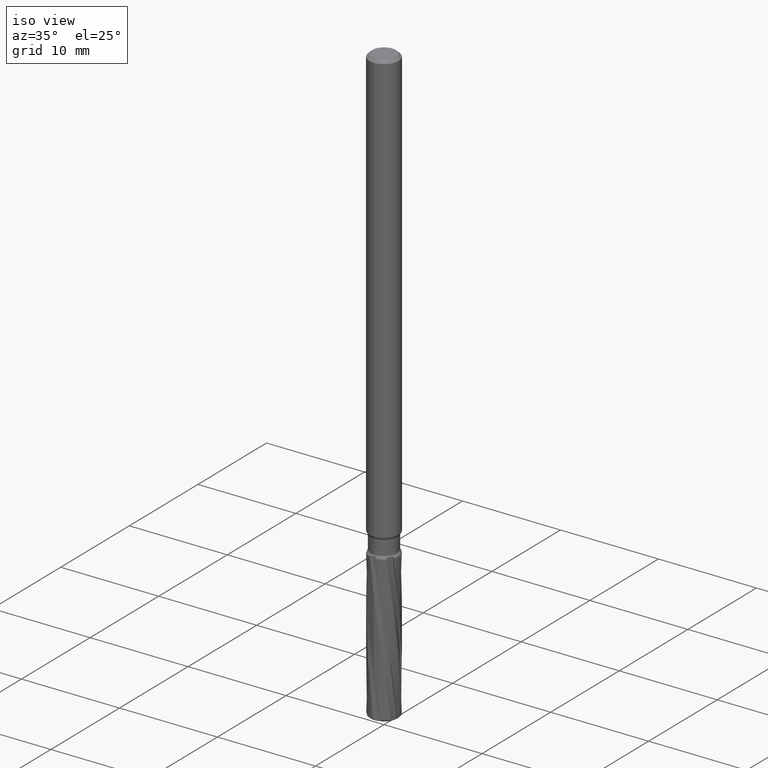
[diagram: clean part render]
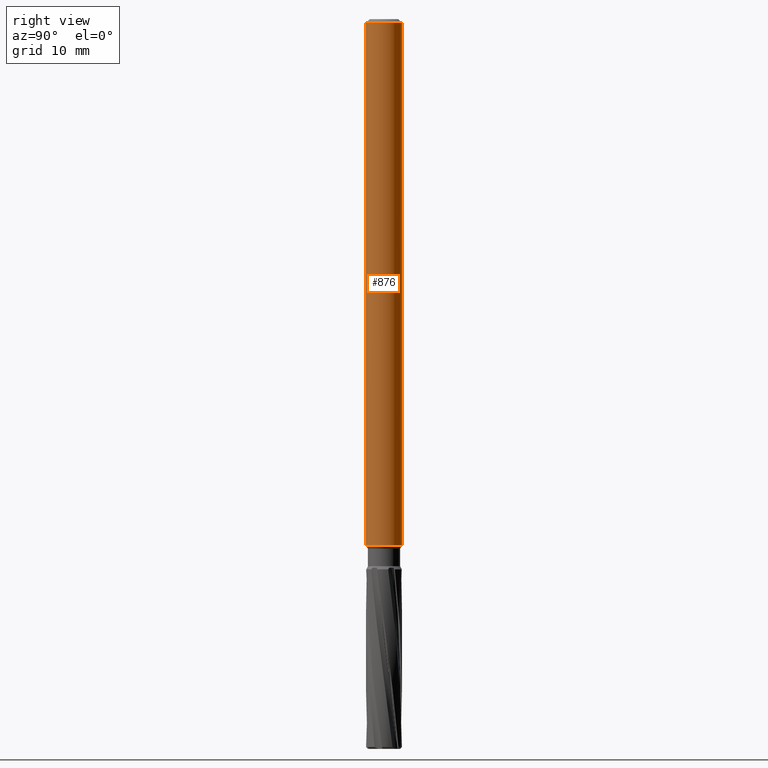
[diagram: tour spotlight — one face highlighted and labeled with its STEP entity id]
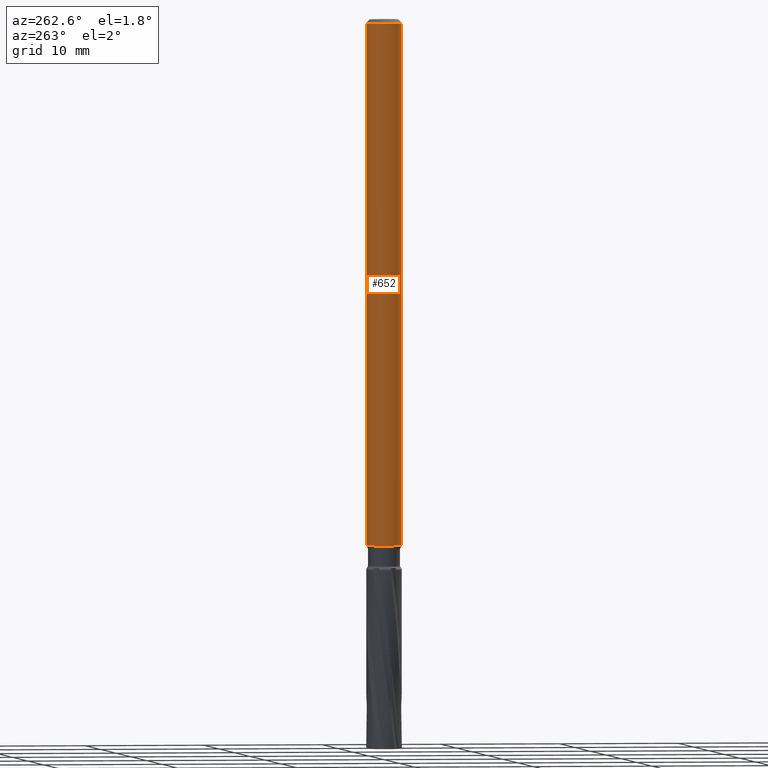
[diagram: tour spotlight — one face highlighted and labeled with its STEP entity id]
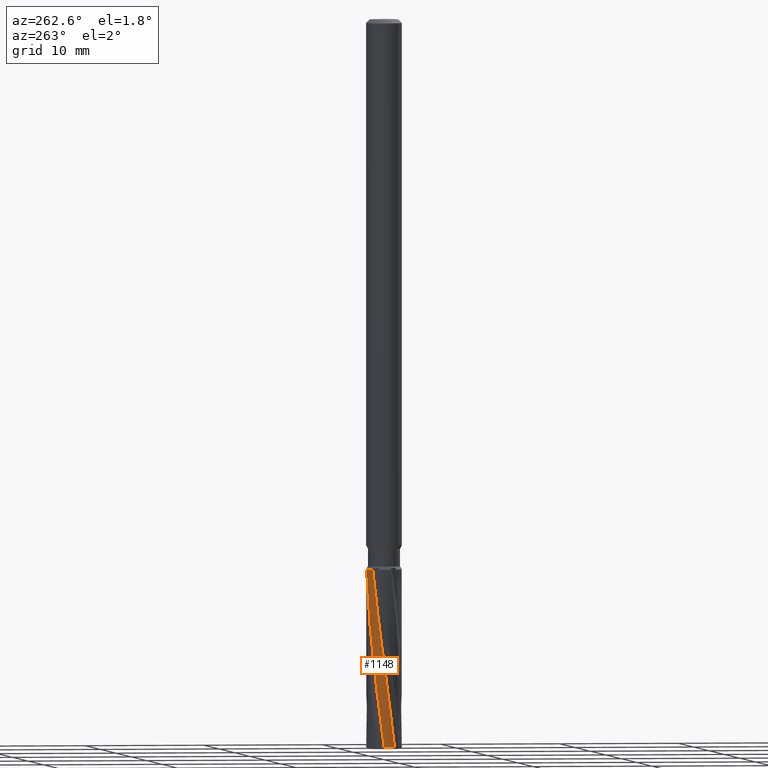
[diagram: tour spotlight — one face highlighted and labeled with its STEP entity id]
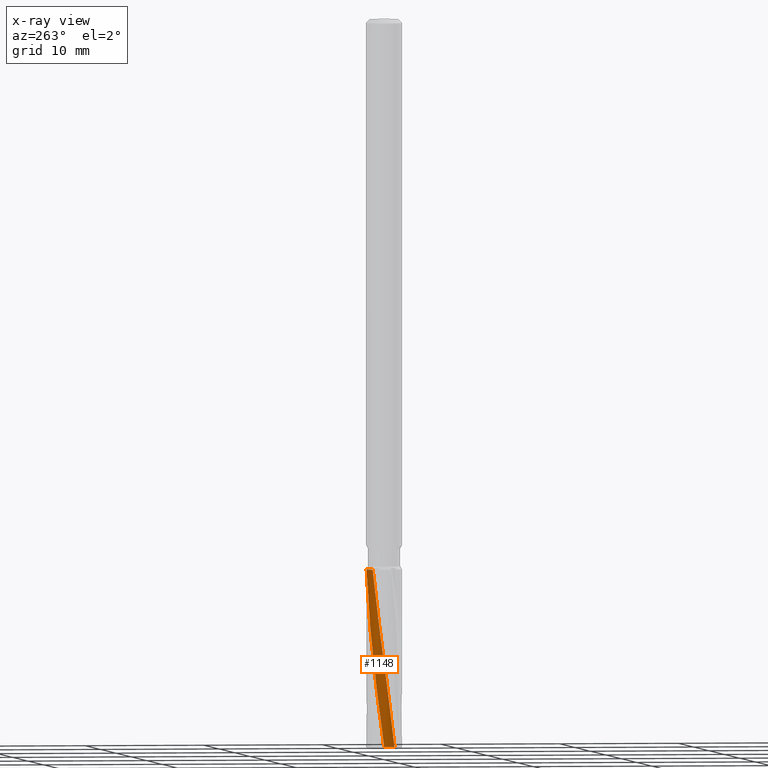
[diagram: x-ray of the same camera — body ghosted, this tour face saturated]
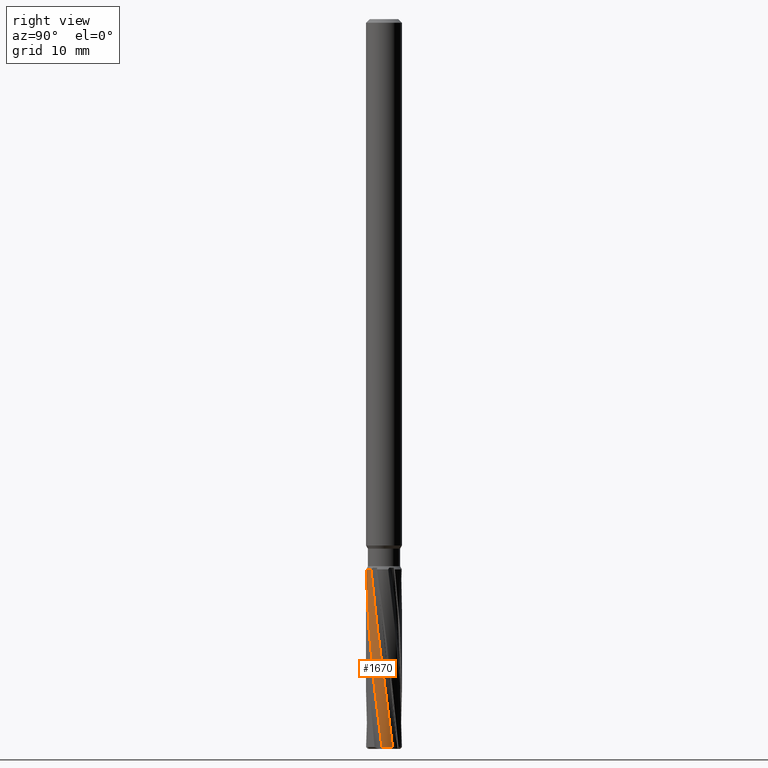
[diagram: tour spotlight — one face highlighted and labeled with its STEP entity id]
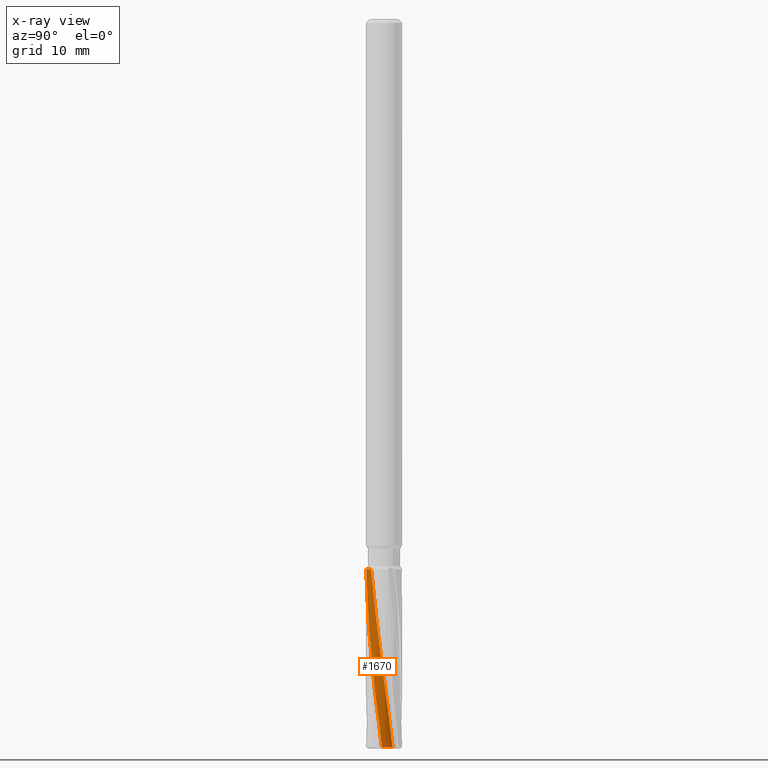
[diagram: x-ray of the same camera — body ghosted, this tour face saturated]
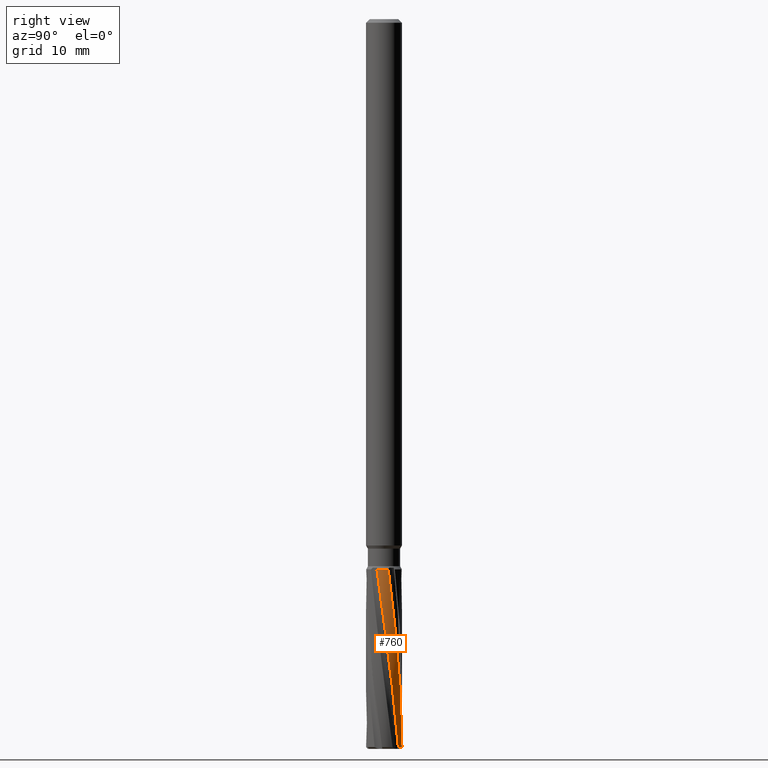
[diagram: tour spotlight — one face highlighted and labeled with its STEP entity id]
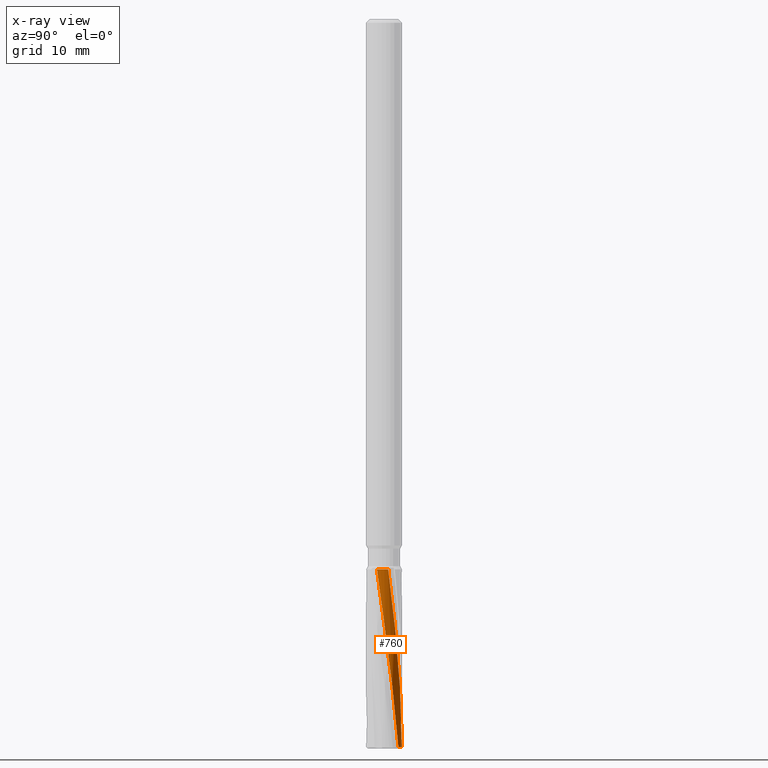
[diagram: x-ray of the same camera — body ghosted, this tour face saturated]
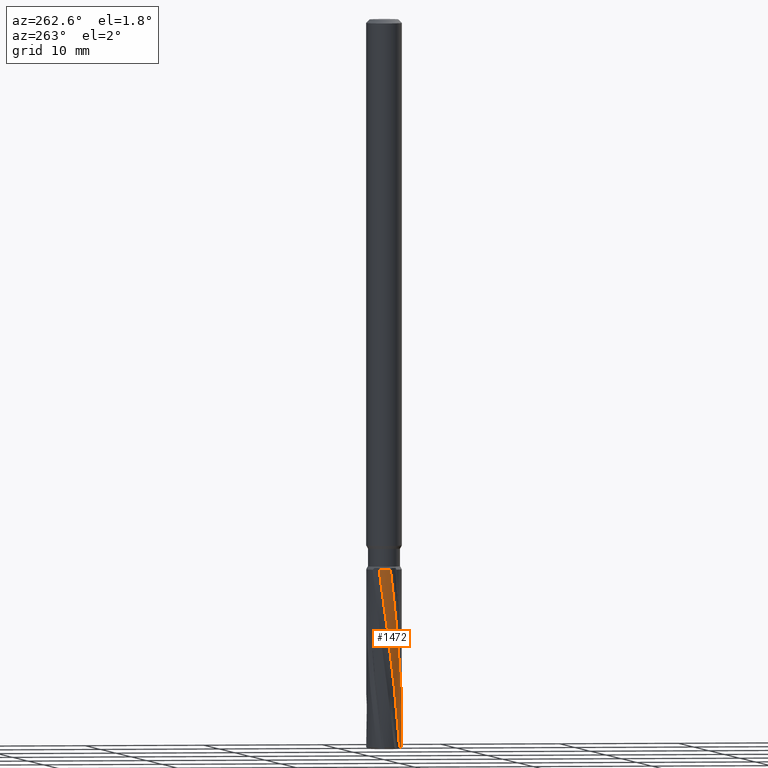
[diagram: tour spotlight — one face highlighted and labeled with its STEP entity id]
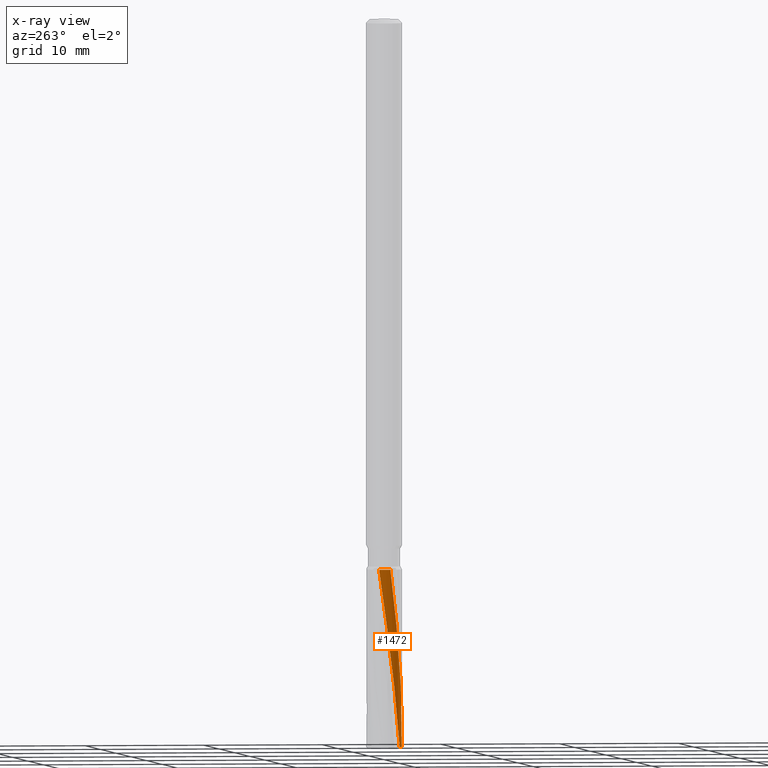
[diagram: x-ray of the same camera — body ghosted, this tour face saturated]
A machine part: a face-by-face anatomy tour. The part has 108 B-rep faces; the first image is the clean iso view, then the 6 largest visible faces are spotlighted one at a time (largest first), each with its STEP entity span.

Face 1 — right view, entity #876. In plain terms, the highlighted cylindrical surface (edge-blend (fillet) strip) has radius 1.5 mm, axis along (-0, -0, 1).
Definition (entity closure, byte-faithful):
#876=ADVANCED_FACE('',(#2144),#2145,.T.);
#904=VERTEX_POINT('',#2175);
#1282=VERTEX_POINT('',#2582);
#1378=EDGE_CURVE('',#904,#1758,#2688,.T.);
#1650=EDGE_CURVE('',#1702,#1282,#2989,.T.);
#1702=VERTEX_POINT('',#3045);
#1758=VERTEX_POINT('',#3108);
#1778=EDGE_CURVE('',#904,#1702,#3130,.T.);
#1808=EDGE_CURVE('',#1282,#1758,#3161,.T.);
#2144=FACE_OUTER_BOUND('',#4503,.T.);
#2145=CYLINDRICAL_SURFACE('',#4504,1.5);
#2175=CARTESIAN_POINT('',(0.0,1.5,-0.299999999999997));
#2582=CARTESIAN_POINT('',(1.83690953073357E-016,-1.5,-44.0));
#2688=CIRCLE('',#7583,1.5);
#2989=CIRCLE('',#9975,1.5);
#3045=CARTESIAN_POINT('',(0.0,1.5,-44.0));
#3108=CARTESIAN_POINT('',(1.83690953073357E-016,-1.5,-0.299999999999997));
#3130=LINE('',#10887,#10888);
#3161=LINE('',#11009,#11010);
#4503=EDGE_LOOP('',(#12179,#12180,#12181,#12182));
#4504=AXIS2_PLACEMENT_3D('',#12183,#12184,#12185);
#7583=AXIS2_PLACEMENT_3D('',#12640,#12641,#12642);
#9975=AXIS2_PLACEMENT_3D('',#12954,#12955,#12956);
#10887=CARTESIAN_POINT('',(-1.83690953073357E-016,1.5,-22.15));
#10888=VECTOR('',#13096,1.0);
#11009=CARTESIAN_POINT('',(1.83690953073357E-016,-1.5,-22.15));
#11010=VECTOR('',#13116,1.0);
#12179=ORIENTED_EDGE('',*,*,#1778,.F.);
#12180=ORIENTED_EDGE('',*,*,#1378,.T.);
#12181=ORIENTED_EDGE('',*,*,#1808,.F.);
#12182=ORIENTED_EDGE('',*,*,#1650,.F.);
#12183=CARTESIAN_POINT('',(0.0,0.0,-22.15));
#12184=DIRECTION('',(-0.0,-0.0,1.0));
#12185=DIRECTION('',(0.0,1.0,0.0));
#12640=CARTESIAN_POINT('',(0.0,0.0,-0.299999999999997));
#12641=DIRECTION('',(0.0,0.0,-1.0));
#12642=DIRECTION('',(0.0,1.0,0.0));
#12954=CARTESIAN_POINT('',(0.0,0.0,-44.0));
#12955=DIRECTION('',(0.0,0.0,-1.0));
#12956=DIRECTION('',(0.0,1.0,0.0));
#13096=DIRECTION('',(0.0,0.0,-1.0));
#13116=DIRECTION('',(-0.0,-0.0,1.0));

Face 2 — auxiliary view, entity #652. In plain terms, the highlighted cylindrical surface (edge-blend (fillet) strip) has radius 1.5 mm, axis along (-0, -0, 1).
Definition (entity closure, byte-faithful):
#652=ADVANCED_FACE('',(#1901),#1902,.T.);
#796=EDGE_CURVE('',#1282,#1702,#2059,.T.);
#904=VERTEX_POINT('',#2175);
#1080=EDGE_CURVE('',#1758,#904,#2363,.T.);
#1282=VERTEX_POINT('',#2582);
#1702=VERTEX_POINT('',#3045);
#1758=VERTEX_POINT('',#3108);
#1778=EDGE_CURVE('',#904,#1702,#3130,.T.);
#1808=EDGE_CURVE('',#1282,#1758,#3161,.T.);
#1901=FACE_OUTER_BOUND('',#3254,.T.);
#1902=CYLINDRICAL_SURFACE('',#3255,1.5);
#2059=CIRCLE('',#4005,1.5);
#2175=CARTESIAN_POINT('',(0.0,1.5,-0.299999999999997));
#2363=CIRCLE('',#5806,1.5);
#2582=CARTESIAN_POINT('',(1.83690953073357E-016,-1.5,-44.0));
#3045=CARTESIAN_POINT('',(0.0,1.5,-44.0));
#3108=CARTESIAN_POINT('',(1.83690953073357E-016,-1.5,-0.299999999999997));
#3130=LINE('',#10887,#10888);
#3161=LINE('',#11009,#11010);
#3254=EDGE_LOOP('',(#11953,#11954,#11955,#11956));
#3255=AXIS2_PLACEMENT_3D('',#11957,#11958,#11959);
#4005=AXIS2_PLACEMENT_3D('',#12114,#12115,#12116);
#5806=AXIS2_PLACEMENT_3D('',#12340,#12341,#12342);
#10887=CARTESIAN_POINT('',(-1.83690953073357E-016,1.5,-22.15));
#10888=VECTOR('',#13096,1.0);
#11009=CARTESIAN_POINT('',(1.83690953073357E-016,-1.5,-22.15));
#11010=VECTOR('',#13116,1.0);
#11953=ORIENTED_EDGE('',*,*,#1778,.T.);
#11954=ORIENTED_EDGE('',*,*,#796,.F.);
#11955=ORIENTED_EDGE('',*,*,#1808,.T.);
#11956=ORIENTED_EDGE('',*,*,#1080,.T.);
#11957=CARTESIAN_POINT('',(0.0,0.0,-22.15));
#11958=DIRECTION('',(-0.0,-0.0,1.0));
#11959=DIRECTION('',(0.0,1.0,0.0));
#12114=CARTESIAN_POINT('',(0.0,0.0,-44.0));
#12115=DIRECTION('',(0.0,0.0,-1.0));
#12116=DIRECTION('',(0.0,1.0,0.0));
#12340=CARTESIAN_POINT('',(0.0,0.0,-0.299999999999997));
#12341=DIRECTION('',(0.0,0.0,-1.0));
#12342=DIRECTION('',(0.0,1.0,0.0));
#13096=DIRECTION('',(0.0,0.0,-1.0));
#13116=DIRECTION('',(-0.0,-0.0,1.0));

Face 3 — auxiliary view, entity #1148. An x-ray twin of the same camera follows (body ghosted, this face saturated) — the face is partly hidden behind the body. In plain terms, the highlighted cylindrical surface (edge-blend (fillet) strip) has radius 1.5 mm, axis along (-0, -0, 1).
Definition (entity closure, byte-faithful):
#734=EDGE_CURVE('',#1088,#844,#1991,.T.);
#746=EDGE_CURVE('',#1084,#782,#2004,.T.);
#782=VERTEX_POINT('',#2044);
#844=VERTEX_POINT('',#2110);
#914=EDGE_CURVE('',#1084,#1088,#2186,.T.);
#1084=VERTEX_POINT('',#2367);
#1088=VERTEX_POINT('',#2371);
#1148=ADVANCED_FACE('',(#2437),#2438,.T.);
#1822=EDGE_CURVE('',#844,#782,#3176,.T.);
#1991=CIRCLE('',#3744,1.5);
#2004=CIRCLE('',#3806,1.5);
#2044=CARTESIAN_POINT('',(-1.48943472253416,0.177719462382665,-60.85));
#2110=CARTESIAN_POINT('',(-0.177745614277778,1.48943160185522,-46.0));
#2186=B_SPLINE_CURVE_WITH_KNOTS('',3,(#4760,#4761,#4762,#4763,#4764,#4765,#4766,#4767,#4768,#4769,#4770,#4771,#4772,#4773,#4774,#4775,#4776,#4777),.UNSPECIFIED.,.F.,.F.,(4,2,2,2,2,2,2,2,4),(0.0,1.67488416491363,4.03778229929834,6.00061003544883,8.1432726502589,9.86178422949192,12.4062010656694,14.3926949218989,15.2922815553905),.UNSPECIFIED.);
#2367=CARTESIAN_POINT('',(-1.31956415242222,-0.713267444681332,-60.85));
#2371=CARTESIAN_POINT('',(-1.03187320200903,1.08868622429772,-46.0));
#2437=FACE_OUTER_BOUND('',#6029,.T.);
#2438=CYLINDRICAL_SURFACE('',#6030,1.5);
#3176=B_SPLINE_CURVE_WITH_KNOTS('',3,(#11262,#11263,#11264,#11265,#11266,#11267,#11268,#11269,#11270,#11271,#11272,#11273,#11274,#11275,#11276,#11277,#11278,#11279,#11280,#11281,#11282,#11283),.UNSPECIFIED.,.F.,.F.,(4,2,2,2,2,2,2,2,2,2,4),(0.0,1.30604339807018,2.50326410544871,3.85034488139974,6.07481636004302,6.55721403285513,7.45850570428287,9.03303237025083,11.403353162563,11.9909677657364,13.7549169630714),.UNSPECIFIED.);
#3744=AXIS2_PLACEMENT_3D('',#12046,#12047,#12048);
#3806=AXIS2_PLACEMENT_3D('',#12063,#12064,#12065);
#4760=CARTESIAN_POINT('',(-1.31956415242222,-0.713267444681333,-60.85));
#4761=CARTESIAN_POINT('',(-1.35441898157641,-0.648785063726426,-60.2965380233117));
#4762=CARTESIAN_POINT('',(-1.38449807681961,-0.581840168841955,-59.742571754128));
#4763=CARTESIAN_POINT('',(-1.44492833535803,-0.4157834158828,-58.4085767736281));
#4764=CARTESIAN_POINT('',(-1.47017404106301,-0.315175505857747,-57.6352534763637));
#4765=CARTESIAN_POINT('',(-1.49706699754967,-0.127304677136784,-56.2071107446127));
#4766=CARTESIAN_POINT('',(-1.50189902497404,-0.0412080831964077,-55.5592822952937));
#4767=CARTESIAN_POINT('',(-1.49652923850484,0.138625003018483,-54.2040266431519));
#4768=CARTESIAN_POINT('',(-1.48492110362975,0.23204618488848,-53.5000413170261));
#4769=CARTESIAN_POINT('',(-1.44835132900388,0.397444950886579,-52.2256773120986));
#4770=CARTESIAN_POINT('',(-1.42659939964841,0.469519815488407,-51.661665488735));
#4771=CARTESIAN_POINT('',(-1.3596202430554,0.643261182788864,-50.2536000683196));
#4772=CARTESIAN_POINT('',(-1.30796216471549,0.743311540645941,-49.385737037939));
#4773=CARTESIAN_POINT('',(-1.19321706343319,0.91341439966322,-47.8982925524993));
#4774=CARTESIAN_POINT('',(-1.14625335430767,0.970341881377115,-47.4155061501288));
#4775=CARTESIAN_POINT('',(-1.07294258885753,1.04876781599542,-46.5431067887712));
#4776=CARTESIAN_POINT('',(-1.05130586147785,1.07026765694369,-46.2722702305774));
#4777=CARTESIAN_POINT('',(-1.03187320200904,1.08868622429772,-46.0));
#6029=EDGE_LOOP('',(#12430,#12431,#12432,#12433));
#6030=AXIS2_PLACEMENT_3D('',#12434,#12435,#12436);
#11262=CARTESIAN_POINT('',(-0.177745614277784,1.48943160185522,-46.0));
#11263=CARTESIAN_POINT('',(-0.255886792684306,1.48010639904701,-46.4281760189859));
#11264=CARTESIAN_POINT('',(-0.325295369909301,1.46558511600695,-46.8584321338596));
#11265=CARTESIAN_POINT('',(-0.438847976562361,1.43546831820715,-47.6913696306592));
#11266=CARTESIAN_POINT('',(-0.469033955680904,1.42561683939228,-47.9795152186357));
#11267=CARTESIAN_POINT('',(-0.566336184391042,1.39006174748068,-48.8258113851644));
#11268=CARTESIAN_POINT('',(-0.618645420185339,1.36777321238852,-49.2684486248092));
#11269=CARTESIAN_POINT('',(-0.759406847228604,1.29727231322428,-50.4523167708855));
#11270=CARTESIAN_POINT('',(-0.848388278465,1.24205996647412,-51.2164371080037));
#11271=CARTESIAN_POINT('',(-0.954619220571428,1.15727647863332,-52.2399794336839));
#11272=CARTESIAN_POINT('',(-0.973260503554684,1.14164811245269,-52.4231792941386));
#11273=CARTESIAN_POINT('',(-1.02582172202605,1.09534093174691,-52.9506869916033));
#11274=CARTESIAN_POINT('',(-1.05863784471017,1.06365479212349,-53.2938446897606));
#11275=CARTESIAN_POINT('',(-1.14461907129634,0.972718715964287,-54.2377429408532));
#11276=CARTESIAN_POINT('',(-1.19475397398847,0.910470786890731,-54.8397212002244));
#11277=CARTESIAN_POINT('',(-1.30753009591084,0.744886513700024,-56.3451970277545));
#11278=CARTESIAN_POINT('',(-1.36278653496719,0.638025825096449,-57.2402642015759));
#11279=CARTESIAN_POINT('',(-1.41506815582798,0.498456359007737,-58.369733560542));
#11280=CARTESIAN_POINT('',(-1.42468875914056,0.470270091881487,-58.5958112059949));
#11281=CARTESIAN_POINT('',(-1.4598865082868,0.356047232596707,-59.4990999819927));
#11282=CARTESIAN_POINT('',(-1.47869551278455,0.267722840061162,-60.1727727506788));
#11283=CARTESIAN_POINT('',(-1.48943472253416,0.177719462382661,-60.85));
#12046=CARTESIAN_POINT('',(0.0,0.0,-46.0));
#12047=DIRECTION('',(0.0,0.0,-1.0));
#12048=DIRECTION('',(0.0,1.0,0.0));
#12063=CARTESIAN_POINT('',(0.0,0.0,-60.85));
#12064=DIRECTION('',(0.0,0.0,-1.0));
#12065=DIRECTION('',(0.0,1.0,0.0));
#12430=ORIENTED_EDGE('',*,*,#914,.T.);
#12431=ORIENTED_EDGE('',*,*,#734,.T.);
#12432=ORIENTED_EDGE('',*,*,#1822,.T.);
#12433=ORIENTED_EDGE('',*,*,#746,.F.);
#12434=CARTESIAN_POINT('',(0.0,0.0,-53.425));
#12435=DIRECTION('',(-0.0,-0.0,1.0));
#12436=DIRECTION('',(0.0,1.0,0.0));

Face 4 — right view, entity #1670. An x-ray twin of the same camera follows (body ghosted, this face saturated) — the face is partly hidden behind the body. In plain terms, the highlighted cylindrical surface (edge-blend (fillet) strip) has radius 1.5 mm, axis along (-0, -0, 1).
Definition (entity closure, byte-faithful):
#784=EDGE_CURVE('',#1700,#1098,#2046,.T.);
#1098=VERTEX_POINT('',#2382);
#1210=EDGE_CURVE('',#1756,#1250,#2502,.T.);
#1250=VERTEX_POINT('',#2546);
#1414=EDGE_CURVE('',#1098,#1250,#2725,.T.);
#1424=EDGE_CURVE('',#1756,#1700,#2736,.T.);
#1670=ADVANCED_FACE('',(#3012),#3013,.T.);
#1700=VERTEX_POINT('',#3043);
#1756=VERTEX_POINT('',#3106);
#2046=CIRCLE('',#3975,1.5);
#2382=CARTESIAN_POINT('',(0.177745614277781,-1.48943160185522,-46.0));
#2502=CIRCLE('',#6297,1.5);
#2546=CARTESIAN_POINT('',(1.48943472253416,-0.177719462382663,-60.85));
#2725=B_SPLINE_CURVE_WITH_KNOTS('',3,(#7842,#7843,#7844,#7845,#7846,#7847,#7848,#7849,#7850,#7851,#7852,#7853,#7854,#7855,#7856,#7857,#7858,#7859,#7860,#7861,#7862,#7863),.UNSPECIFIED.,.F.,.F.,(4,2,2,2,2,2,2,2,2,2,4),(0.0,1.30604339834715,2.50326410783607,3.85034494331315,6.07481644011164,6.55721410867814,7.45850577020245,9.03303241897909,11.4033531852368,11.9909677816807,13.7549169580794),.UNSPECIFIED.);
#2736=B_SPLINE_CURVE_WITH_KNOTS('',3,(#7894,#7895,#7896,#7897,#7898,#7899,#7900,#7901,#7902,#7903,#7904,#7905,#7906,#7907,#7908,#7909,#7910,#7911),.UNSPECIFIED.,.F.,.F.,(4,2,2,2,2,2,2,2,4),(0.0,1.67488416497494,4.03778229942081,6.00061003563149,8.14327265055296,9.86178423007808,12.4062010692113,14.392694928947,15.2922815648404),.UNSPECIFIED.);
#3012=FACE_OUTER_BOUND('',#10015,.T.);
#3013=CYLINDRICAL_SURFACE('',#10016,1.5);
#3043=CARTESIAN_POINT('',(1.03187320200903,-1.08868622429772,-46.0));
#3106=CARTESIAN_POINT('',(1.31956415242222,0.713267444681332,-60.85));
#3975=AXIS2_PLACEMENT_3D('',#12100,#12101,#12102);
#6297=AXIS2_PLACEMENT_3D('',#12466,#12467,#12468);
#7842=CARTESIAN_POINT('',(0.177745614277779,-1.48943160185522,-46.0));
#7843=CARTESIAN_POINT('',(0.255886792700874,-1.48010639904504,-46.4281760190767));
#7844=CARTESIAN_POINT('',(0.325295369735146,-1.46558511603694,-46.8584321329075));
#7845=CARTESIAN_POINT('',(0.438847976095951,-1.43546831834571,-47.6913696269396));
#7846=CARTESIAN_POINT('',(0.469033955353359,-1.42561683948305,-47.9795152156786));
#7847=CARTESIAN_POINT('',(0.566336185277145,-1.39006174718942,-48.8258113929931));
#7848=CARTESIAN_POINT('',(0.618645423190539,-1.36777321113945,-49.2684486502388));
#7849=CARTESIAN_POINT('',(0.759406852820723,-1.29727231000053,-50.4523168176626));
#7850=CARTESIAN_POINT('',(0.848388284558474,-1.24205996239023,-51.2164371625335));
#7851=CARTESIAN_POINT('',(0.954619226709005,-1.15727647356588,-52.2399794937266));
#7852=CARTESIAN_POINT('',(0.973260509480799,-1.14164810739811,-52.4231793527852));
#7853=CARTESIAN_POINT('',(1.02582172738464,-1.09534092671501,-52.9506870469299));
#7854=CARTESIAN_POINT('',(1.05863784967886,-1.06365478716466,-53.2938447426309));
#7855=CARTESIAN_POINT('',(1.14461907526444,-0.972718711250085,-54.2377429873423));
#7856=CARTESIAN_POINT('',(1.19475397735967,-0.910470782418585,-54.8397212423099));
#7857=CARTESIAN_POINT('',(1.30753009794425,-0.744886509995402,-56.3451970592911));
#7858=CARTESIAN_POINT('',(1.36278653633668,-0.638025822008112,-57.2402642269967));
#7859=CARTESIAN_POINT('',(1.41506815657837,-0.498456356863806,-58.3697335777856));
#7860=CARTESIAN_POINT('',(1.42468875978975,-0.470270089901891,-58.5958112217643));
#7861=CARTESIAN_POINT('',(1.45988650854326,-0.356047231382764,-59.499099991249));
#7862=CARTESIAN_POINT('',(1.47869551285942,-0.267722839433675,-60.1727727554003));
#7863=CARTESIAN_POINT('',(1.48943472253416,-0.177719462382661,-60.85));
#7894=CARTESIAN_POINT('',(1.31956415242222,0.713267444681331,-60.85));
#7895=CARTESIAN_POINT('',(1.35441898157769,0.648785063724063,-60.2965380232914));
#7896=CARTESIAN_POINT('',(1.38449807682011,0.581840168840894,-59.7425717541191));
#7897=CARTESIAN_POINT('',(1.44492833535863,0.415783415880723,-58.4085767736119));
#7898=CARTESIAN_POINT('',(1.47017404106332,0.315175505856189,-57.6352534763518));
#7899=CARTESIAN_POINT('',(1.49706699754979,0.127304677135461,-56.2071107446027));
#7900=CARTESIAN_POINT('',(1.50189902497409,0.0412080831952561,-55.5592822952851));
#7901=CARTESIAN_POINT('',(1.49652923850465,-0.138625003022163,-54.2040266431242));
#7902=CARTESIAN_POINT('',(1.48492110362905,-0.232046184891887,-53.5000413169999));
#7903=CARTESIAN_POINT('',(1.44835132900216,-0.397444950894132,-52.2256773120404));
#7904=CARTESIAN_POINT('',(1.42659939963837,-0.469519815514139,-51.6616654885261));
#7905=CARTESIAN_POINT('',(1.35962024303265,-0.643261182848347,-50.2536000678381));
#7906=CARTESIAN_POINT('',(1.30796216470932,-0.743311540645689,-49.3857370379378));
#7907=CARTESIAN_POINT('',(1.19321706347572,-0.913414399607487,-47.8982925529891));
#7908=CARTESIAN_POINT('',(1.14625335436513,-0.970341881314838,-47.415506150806));
#7909=CARTESIAN_POINT('',(1.07294258882195,-1.04876781603385,-46.5431067883508));
#7910=CARTESIAN_POINT('',(1.05130586146142,-1.07026765695925,-46.2722702303472));
#7911=CARTESIAN_POINT('',(1.03187320200903,-1.08868622429772,-46.0));
#10015=EDGE_LOOP('',(#12986,#12987,#12988,#12989));
#10016=AXIS2_PLACEMENT_3D('',#12990,#12991,#12992);
#12100=CARTESIAN_POINT('',(0.0,0.0,-46.0));
#12101=DIRECTION('',(0.0,0.0,-1.0));
#12102=DIRECTION('',(0.0,1.0,0.0));
#12466=CARTESIAN_POINT('',(0.0,0.0,-60.85));
#12467=DIRECTION('',(0.0,0.0,-1.0));
#12468=DIRECTION('',(0.0,1.0,0.0));
#12986=ORIENTED_EDGE('',*,*,#1414,.T.);
#12987=ORIENTED_EDGE('',*,*,#1210,.F.);
#12988=ORIENTED_EDGE('',*,*,#1424,.T.);
#12989=ORIENTED_EDGE('',*,*,#784,.T.);
#12990=CARTESIAN_POINT('',(0.0,0.0,-53.425));
#12991=DIRECTION('',(-0.0,-0.0,1.0));
#12992=DIRECTION('',(0.0,1.0,0.0));

Face 5 — right view, entity #760. An x-ray twin of the same camera follows (body ghosted, this face saturated) — the face is partly hidden behind the body. In plain terms, the highlighted cylindrical surface (edge-blend (fillet) strip) has radius 1.5 mm, axis along (-0, -0, 1).
Definition (entity closure, byte-faithful):
#760=ADVANCED_FACE('',(#2020),#2021,.T.);
#886=VERTEX_POINT('',#2155);
#932=VERTEX_POINT('',#2205);
#940=EDGE_CURVE('',#932,#1052,#2214,.T.);
#1052=VERTEX_POINT('',#2332);
#1238=EDGE_CURVE('',#1052,#886,#2533,.T.);
#1454=EDGE_CURVE('',#1580,#886,#2769,.T.);
#1578=EDGE_CURVE('',#1580,#932,#2907,.T.);
#1580=VERTEX_POINT('',#2909);
#2020=FACE_OUTER_BOUND('',#3888,.T.);
#2021=CYLINDRICAL_SURFACE('',#3889,1.5);
#2155=CARTESIAN_POINT('',(0.898626930437378,1.20102857580188,-60.85));
#2205=CARTESIAN_POINT('',(1.4587665279965,0.349285294275359,-46.0));
#2214=CIRCLE('',#4879,1.5);
#2332=CARTESIAN_POINT('',(1.37875841154486,-0.590783583551782,-46.0));
#2533=B_SPLINE_CURVE_WITH_KNOTS('',3,(#6519,#6520,#6521,#6522,#6523,#6524,#6525,#6526,#6527,#6528,#6529,#6530,#6531,#6532,#6533,#6534,#6535,#6536,#6537,#6538,#6539,#6540),.UNSPECIFIED.,.F.,.F.,(4,2,2,2,2,2,2,2,2,2,4),(0.0,1.30604339845994,2.50326410780427,3.85034493131066,6.07481642212485,6.55721409108788,7.45850575413113,9.03303240546787,11.403353175524,11.9909677729641,13.7549169524913),.UNSPECIFIED.);
#2769=CIRCLE('',#8084,1.5);
#2907=B_SPLINE_CURVE_WITH_KNOTS('',3,(#9018,#9019,#9020,#9021,#9022,#9023,#9024,#9025,#9026,#9027,#9028,#9029,#9030,#9031,#9032,#9033,#9034,#9035),.UNSPECIFIED.,.F.,.F.,(4,2,2,2,2,2,2,2,4),(0.0,1.87195271668825,3.51481235825181,6.38708840890249,10.7230650968878,11.2600117154039,12.1960790160297,14.6368156131778,15.4970612428336),.UNSPECIFIED.);
#2909=CARTESIAN_POINT('',(0.0420743494246605,1.49940980026159,-60.85));
#3888=EDGE_LOOP('',(#12085,#12086,#12087,#12088));
#3889=AXIS2_PLACEMENT_3D('',#12089,#12090,#12091);
#4879=AXIS2_PLACEMENT_3D('',#12240,#12241,#12242);
#6519=CARTESIAN_POINT('',(1.37875841154486,-0.590783583551784,-46.0));
#6520=CARTESIAN_POINT('',(1.40975313823002,-0.518448736544389,-46.4281760191136));
#6521=CARTESIAN_POINT('',(1.43188162677736,-0.451078504057512,-46.8584321331217));
#6522=CARTESIAN_POINT('',(1.46257601808866,-0.337680663368195,-47.6913696277715));
#6523=CARTESIAN_POINT('',(1.46913737675173,-0.30661309908824,-47.979515216389));
#6524=CARTESIAN_POINT('',(1.48699687849369,-0.204569350252548,-48.8258113913609));
#6525=CARTESIAN_POINT('',(1.493849058967,-0.148123953811633,-49.2684486450156));
#6526=CARTESIAN_POINT('',(1.50317420247823,0.00902946959650426,-50.4523168048662));
#6527=CARTESIAN_POINT('',(1.49984962287919,0.113695823481306,-51.21643714743));
#6528=CARTESIAN_POINT('',(1.47954043900514,0.248086262463701,-52.2399794782402));
#6529=CARTESIAN_POINT('',(1.47532651829426,0.272044270035963,-52.4231793376591));
#6530=CARTESIAN_POINT('',(1.46150393246658,0.340717210460088,-52.9506870326159));
#6531=CARTESIAN_POINT('',(1.45047099184848,0.384979875895122,-53.2938447289727));
#6532=CARTESIAN_POINT('',(1.41470865285698,0.504909839702097,-54.2377429752421));
#6533=CARTESIAN_POINT('',(1.38586781622514,0.579451903119845,-54.8397212313968));
#6534=CARTESIAN_POINT('',(1.29885569013228,0.759911025098402,-56.3451970511189));
#6535=CARTESIAN_POINT('',(1.23393983881078,0.861194848694736,-57.2402642204415));
#6536=CARTESIAN_POINT('',(1.13920994639569,0.976256792804326,-58.3697335733087));
#6537=CARTESIAN_POINT('',(1.11961022474988,0.998681613111133,-58.5958112176798));
#6538=CARTESIAN_POINT('',(1.03828920183655,1.08627518713315,-59.4990999888376));
#6539=CARTESIAN_POINT('',(0.971202536683882,1.14672645878324,-60.172772754175));
#6540=CARTESIAN_POINT('',(0.898626930437381,1.20102857580188,-60.85));
#8084=AXIS2_PLACEMENT_3D('',#12709,#12710,#12711);
#9018=CARTESIAN_POINT('',(0.04207434942466,1.49940980026159,-60.85));
#9019=CARTESIAN_POINT('',(0.123966259230878,1.49711186354833,-60.2314171316745));
#9020=CARTESIAN_POINT('',(0.205551088237647,1.48810930154927,-59.6120639121595));
#9021=CARTESIAN_POINT('',(0.356651898127836,1.45875826552316,-58.4509717114397));
#9022=CARTESIAN_POINT('',(0.426204489010925,1.43998247857602,-57.9120514655465));
#9023=CARTESIAN_POINT('',(0.613317298175668,1.37467672025384,-56.4219147665246));
#9024=CARTESIAN_POINT('',(0.726585533074418,1.31830321600457,-55.4747141494465));
#9025=CARTESIAN_POINT('',(0.989565819371271,1.14318831732865,-53.0967676979488));
#9026=CARTESIAN_POINT('',(1.12545351695094,1.00933036902798,-51.695402285647));
#9027=CARTESIAN_POINT('',(1.24592975590301,0.835584709676322,-50.0867771711385));
#9028=CARTESIAN_POINT('',(1.25874738301223,0.816154229852388,-49.9090034719332));
#9029=CARTESIAN_POINT('',(1.29298222393838,0.76149636207575,-49.4200148884661));
#9030=CARTESIAN_POINT('',(1.3136713592262,0.725298437779351,-49.1074367808405));
#9031=CARTESIAN_POINT('',(1.3836494851209,0.589648725862483,-47.9870372002704));
#9032=CARTESIAN_POINT('',(1.41261362429423,0.511807639175462,-47.4602156811456));
#9033=CARTESIAN_POINT('',(1.4459613256856,0.400147619226084,-46.5000581286917));
#9034=CARTESIAN_POINT('',(1.45302866722285,0.373249083693612,-46.250576507218));
#9035=CARTESIAN_POINT('',(1.4587665279965,0.349285294275359,-46.0));
#12085=ORIENTED_EDGE('',*,*,#1578,.T.);
#12086=ORIENTED_EDGE('',*,*,#940,.T.);
#12087=ORIENTED_EDGE('',*,*,#1238,.T.);
#12088=ORIENTED_EDGE('',*,*,#1454,.F.);
#12089=CARTESIAN_POINT('',(0.0,0.0,-53.425));
#12090=DIRECTION('',(-0.0,-0.0,1.0));
#12091=DIRECTION('',(0.0,1.0,0.0));
#12240=CARTESIAN_POINT('',(0.0,0.0,-46.0));
#12241=DIRECTION('',(0.0,0.0,-1.0));
#12242=DIRECTION('',(0.0,1.0,0.0));
#12709=CARTESIAN_POINT('',(0.0,0.0,-60.85));
#12710=DIRECTION('',(0.0,0.0,-1.0));
#12711=DIRECTION('',(0.0,1.0,0.0));

Face 6 — auxiliary view, entity #1472. An x-ray twin of the same camera follows (body ghosted, this face saturated) — the face is partly hidden behind the body. In plain terms, the highlighted cylindrical surface (edge-blend (fillet) strip) has radius 1.5 mm, axis along (-0, -0, 1).
Definition (entity closure, byte-faithful):
#882=VERTEX_POINT('',#2151);
#942=VERTEX_POINT('',#2216);
#1166=EDGE_CURVE('',#1574,#882,#2458,.T.);
#1420=EDGE_CURVE('',#1574,#1496,#2731,.T.);
#1472=ADVANCED_FACE('',(#2789),#2790,.T.);
#1476=EDGE_CURVE('',#882,#942,#2794,.T.);
#1496=VERTEX_POINT('',#2815);
#1574=VERTEX_POINT('',#2902);
#1624=EDGE_CURVE('',#942,#1496,#2961,.T.);
#2151=CARTESIAN_POINT('',(-1.4587665279965,-0.349285294275358,-46.0));
#2216=CARTESIAN_POINT('',(-1.37875841154486,0.590783583551779,-46.0));
#2458=B_SPLINE_CURVE_WITH_KNOTS('',3,(#6071,#6072,#6073,#6074,#6075,#6076,#6077,#6078,#6079,#6080,#6081,#6082,#6083,#6084,#6085,#6086,#6087,#6088),.UNSPECIFIED.,.F.,.F.,(4,2,2,2,2,2,2,2,4),(0.0,1.87195271657241,3.51481235805528,6.38708840855163,10.7230650961034,11.2600117144502,12.1960790150416,14.6368156125278,15.4970612428314),.UNSPECIFIED.);
#2731=CIRCLE('',#7888,1.5);
#2789=FACE_OUTER_BOUND('',#8330,.T.);
#2790=CYLINDRICAL_SURFACE('',#8331,1.5);
#2794=CIRCLE('',#8336,1.5);
#2815=CARTESIAN_POINT('',(-0.898626930437378,-1.20102857580188,-60.85));
#2902=CARTESIAN_POINT('',(-0.042074349424662,-1.49940980026159,-60.85));
#2961=B_SPLINE_CURVE_WITH_KNOTS('',3,(#9815,#9816,#9817,#9818,#9819,#9820,#9821,#9822,#9823,#9824,#9825,#9826,#9827,#9828,#9829,#9830,#9831,#9832,#9833,#9834,#9835,#9836),.UNSPECIFIED.,.F.,.F.,(4,2,2,2,2,2,2,2,2,2,4),(0.0,1.30604339504434,2.50326411269919,3.85034490349333,6.07481639952728,6.55721407699731,7.45850575739148,9.03303243896432,11.4033532546563,11.990967863593,13.7549170779087),.UNSPECIFIED.);
#6071=CARTESIAN_POINT('',(-0.0420743494246629,-1.49940980026159,-60.85));
#6072=CARTESIAN_POINT('',(-0.123966259225813,-1.49711186354847,-60.2314171317127));
#6073=CARTESIAN_POINT('',(-0.205551088233923,-1.48810930154981,-59.6120639121879));
#6074=CARTESIAN_POINT('',(-0.356651898125698,-1.45875826552374,-58.4509717114563));
#6075=CARTESIAN_POINT('',(-0.426204489009143,-1.43998247857658,-57.9120514655606));
#6076=CARTESIAN_POINT('',(-0.613317298174936,-1.37467672025421,-56.4219147665308));
#6077=CARTESIAN_POINT('',(-0.726585533073136,-1.3183032160055,-55.4747141494584));
#6078=CARTESIAN_POINT('',(-0.98956581936752,-1.14318831733103,-53.0967676979822));
#6079=CARTESIAN_POINT('',(-1.12545351693158,-1.00933036905673,-51.695402285911));
#6080=CARTESIAN_POINT('',(-1.24592975590497,-0.835584709673384,-50.0867771711115));
#6081=CARTESIAN_POINT('',(-1.25874738301407,-0.816154229849584,-49.9090034719076));
#6082=CARTESIAN_POINT('',(-1.29298222394761,-0.761496362060788,-49.420014888333));
#6083=CARTESIAN_POINT('',(-1.31367135923278,-0.725298437766793,-49.1074367807361));
#6084=CARTESIAN_POINT('',(-1.38364948511801,-0.589648725867563,-47.9870372003142));
#6085=CARTESIAN_POINT('',(-1.41261362429795,-0.511807639157717,-47.4602156809631));
#6086=CARTESIAN_POINT('',(-1.4459613256794,-0.400147619248752,-46.5000581288972));
#6087=CARTESIAN_POINT('',(-1.45302866722282,-0.373249083693737,-46.2505765072194));
#6088=CARTESIAN_POINT('',(-1.45876652799651,-0.349285294275357,-46.0));
#7888=AXIS2_PLACEMENT_3D('',#12668,#12669,#12670);
#8330=EDGE_LOOP('',(#12732,#12733,#12734,#12735));
#8331=AXIS2_PLACEMENT_3D('',#12736,#12737,#12738);
#8336=AXIS2_PLACEMENT_3D('',#12739,#12740,#12741);
#9815=CARTESIAN_POINT('',(-1.37875841154486,0.590783583551784,-46.0));
#9816=CARTESIAN_POINT('',(-1.40975313814896,0.518448736733561,-46.4281760179938));
#9817=CARTESIAN_POINT('',(-1.43188162663895,0.451078504483632,-46.8584321303698));
#9818=CARTESIAN_POINT('',(-1.46257601808286,0.337680663467746,-47.6913696266937));
#9819=CARTESIAN_POINT('',(-1.46913737676999,0.306613099053131,-47.9795152167804));
#9820=CARTESIAN_POINT('',(-1.48699687831247,0.20456935121002,-48.8258113833073));
#9821=CARTESIAN_POINT('',(-1.49384905865573,0.148123956345859,-49.2684486251397));
#9822=CARTESIAN_POINT('',(-1.5031742025097,-0.00902946564927293,-50.4523167764271));
#9823=CARTESIAN_POINT('',(-1.49984962314877,-0.113695818945878,-51.2164371137064));
#9824=CARTESIAN_POINT('',(-1.47954043989531,-0.248086257169923,-52.2399794377442));
#9825=CARTESIAN_POINT('',(-1.4753265192482,-0.272044264869518,-52.4231792981009));
#9826=CARTESIAN_POINT('',(-1.46150393359951,-0.340717205629461,-52.9506869952712));
#9827=CARTESIAN_POINT('',(-1.45047099307046,-0.384979871316548,-53.2938446932818));
#9828=CARTESIAN_POINT('',(-1.41470865427313,-0.504909835792658,-54.2377429438716));
#9829=CARTESIAN_POINT('',(-1.38586781770166,-0.57945189963977,-54.8397212029888));
#9830=CARTESIAN_POINT('',(-1.29885569161136,-0.759911022659908,-56.3451970298358));
#9831=CARTESIAN_POINT('',(-1.23393984014959,-0.861194846857128,-57.2402642033341));
#9832=CARTESIAN_POINT('',(-1.13920994739674,-0.976256791640843,-58.369733561657));
#9833=CARTESIAN_POINT('',(-1.11961022568773,-0.998681612063792,-58.5958112070382));
#9834=CARTESIAN_POINT('',(-1.03828920246794,-1.08627518656457,-59.4990999824973));
#9835=CARTESIAN_POINT('',(-0.97120253702712,-1.14672645852642,-60.1727727509722));
#9836=CARTESIAN_POINT('',(-0.898626930437377,-1.20102857580188,-60.85));
#12668=CARTESIAN_POINT('',(0.0,0.0,-60.85));
#12669=DIRECTION('',(0.0,0.0,-1.0));
#12670=DIRECTION('',(0.0,1.0,0.0));
#12732=ORIENTED_EDGE('',*,*,#1624,.T.);
#12733=ORIENTED_EDGE('',*,*,#1420,.F.);
#12734=ORIENTED_EDGE('',*,*,#1166,.T.);
#12735=ORIENTED_EDGE('',*,*,#1476,.T.);
#12736=CARTESIAN_POINT('',(0.0,0.0,-53.425));
#12737=DIRECTION('',(-0.0,-0.0,1.0));
#12738=DIRECTION('',(0.0,1.0,0.0));
#12739=CARTESIAN_POINT('',(0.0,0.0,-46.0));
#12740=DIRECTION('',(0.0,0.0,-1.0));
#12741=DIRECTION('',(0.0,1.0,0.0));